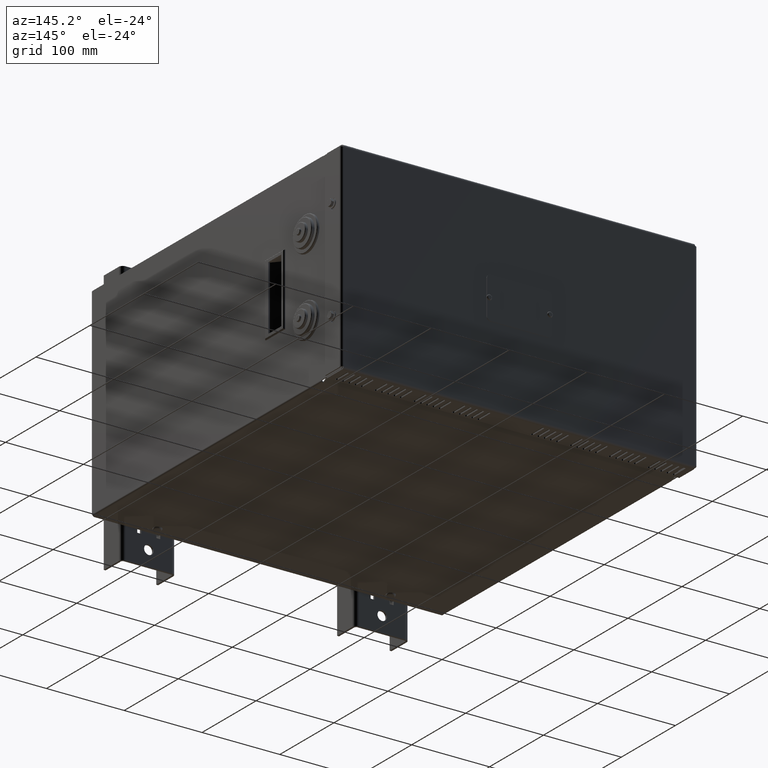
[diagram: clean part render]
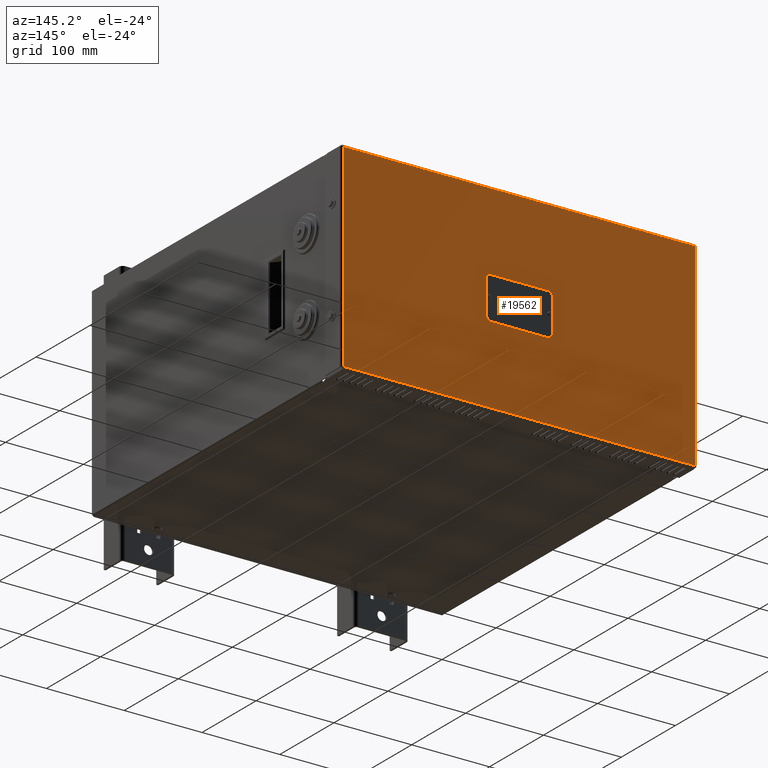
[diagram: same view with one face highlighted and labeled with its STEP entity id]
A machine part, auxiliary view. The second image highlights one B-rep face of the part: STEP entity #19562.
In plain terms, the highlighted planar face has unit normal (-0, 1, 0).
Its self-contained STEP definition (entity closure, byte-faithful):
#1136=PLANE('',#21163);
#2440=LINE('',#30754,#4158);
#2462=LINE('',#30806,#4180);
#2483=LINE('',#30856,#4201);
#2504=LINE('',#30905,#4222);
#4158=VECTOR('',#24953,10.);
#4180=VECTOR('',#25005,10.);
#4201=VECTOR('',#25056,10.);
#4222=VECTOR('',#25107,10.);
#5129=FACE_BOUND('',#7259,.T.);
#5130=FACE_BOUND('',#7260,.T.);
#5914=FACE_OUTER_BOUND('',#7258,.T.);
#7258=EDGE_LOOP('',(#16295,#16296,#16297,#16298));
#7259=EDGE_LOOP('',(#16299));
#7260=EDGE_LOOP('',(#16300));
#8478=CIRCLE('',#21066,1.75);
#8480=CIRCLE('',#21069,1.75);
#9790=VERTEX_POINT('',#30644);
#9792=VERTEX_POINT('',#30649);
#9827=VERTEX_POINT('',#30751);
#9828=VERTEX_POINT('',#30753);
#9843=VERTEX_POINT('',#30805);
#9857=VERTEX_POINT('',#30855);
#12028=EDGE_CURVE('',#9790,#9790,#8478,.T.);
#12030=EDGE_CURVE('',#9792,#9792,#8480,.T.);
#12081=EDGE_CURVE('',#9828,#9827,#2440,.T.);
#12107=EDGE_CURVE('',#9843,#9828,#2462,.T.);
#12132=EDGE_CURVE('',#9857,#9843,#2483,.T.);
#12157=EDGE_CURVE('',#9827,#9857,#2504,.T.);
#16295=ORIENTED_EDGE('',*,*,#12081,.T.);
#16296=ORIENTED_EDGE('',*,*,#12157,.T.);
#16297=ORIENTED_EDGE('',*,*,#12132,.T.);
#16298=ORIENTED_EDGE('',*,*,#12107,.T.);
#16299=ORIENTED_EDGE('',*,*,#12028,.T.);
#16300=ORIENTED_EDGE('',*,*,#12030,.T.);
#19562=ADVANCED_FACE('',(#5914,#5129,#5130),#1136,.T.);
#21066=AXIS2_PLACEMENT_3D('',#30645,#24844,#24845);
#21069=AXIS2_PLACEMENT_3D('',#30650,#24850,#24851);
#21163=AXIS2_PLACEMENT_3D('',#30948,#25154,#25155);
#24844=DIRECTION('center_axis',(5.65693400550717E-15,-1.,-3.60544240877988E-18));
#24845=DIRECTION('ref_axis',(-1.,-5.65693400550717E-15,-6.93289783698236E-16));
#24850=DIRECTION('center_axis',(5.65693400550717E-15,-1.,-3.60544240877988E-18));
#24851=DIRECTION('ref_axis',(-1.,-5.65693400550717E-15,-6.93289783698236E-16));
#24953=DIRECTION('',(-3.87322808407838E-16,-3.60544240878207E-18,1.));
#25005=DIRECTION('',(-1.,-5.65693400550717E-15,-5.36090063397329E-16));
#25056=DIRECTION('',(6.93289783698236E-16,3.6054424087838E-18,-1.));
#25107=DIRECTION('',(1.,5.65693400550717E-15,6.93289783698236E-16));
#25154=DIRECTION('center_axis',(-5.65693400550717E-15,1.,3.60544240877988E-18));
#25155=DIRECTION('ref_axis',(1.,5.65693400550717E-15,6.93289783698236E-16));
#30644=CARTESIAN_POINT('',(265.896587697541,467.000000000001,-129.7));
#30645=CARTESIAN_POINT('Origin',(264.146587697541,467.000000000001,-129.7));
#30649=CARTESIAN_POINT('',(187.896587697541,467.000000000001,-129.7));
#30650=CARTESIAN_POINT('Origin',(186.146587697541,467.000000000001,-129.7));
#30751=CARTESIAN_POINT('',(-0.853412302458808,467.,-2.70000000000002));
#30753=CARTESIAN_POINT('',(-0.853412302458668,467.,-256.7));
#30754=CARTESIAN_POINT('',(-0.853412302458694,467.,-193.2));
#30805=CARTESIAN_POINT('',(451.146587697541,467.000000000002,-256.7));
#30806=CARTESIAN_POINT('',(338.146587697541,467.000000000002,-256.7));
#30855=CARTESIAN_POINT('',(451.146587697541,467.000000000002,-2.69999999999971));
#30856=CARTESIAN_POINT('',(451.146587697541,467.000000000002,-66.1999999999997));
#30905=CARTESIAN_POINT('',(112.146587697541,467.000000000001,-2.69999999999995));
#30948=CARTESIAN_POINT('Origin',(225.146587697541,467.000000000001,-129.7));